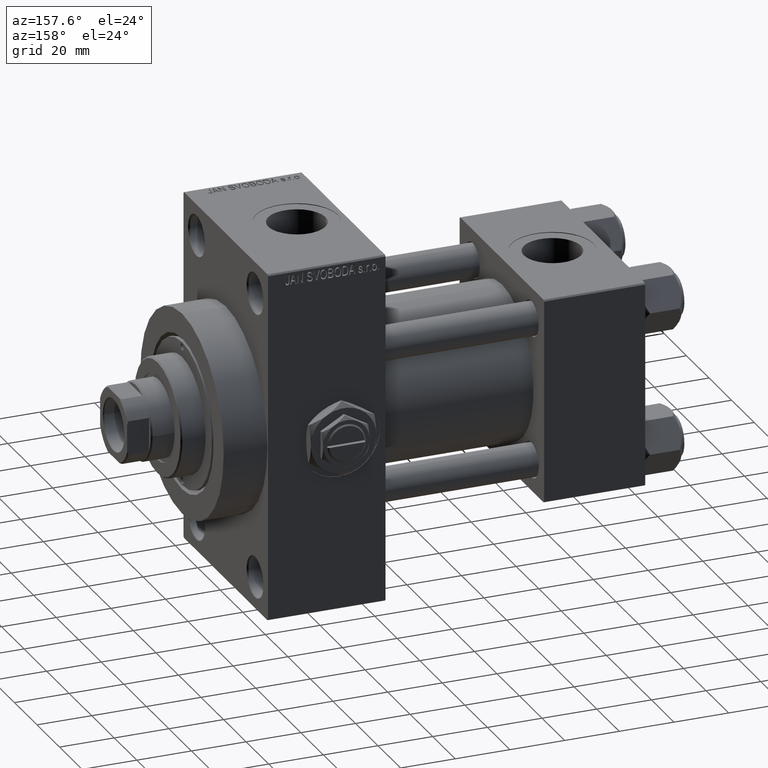
[diagram: clean part render]
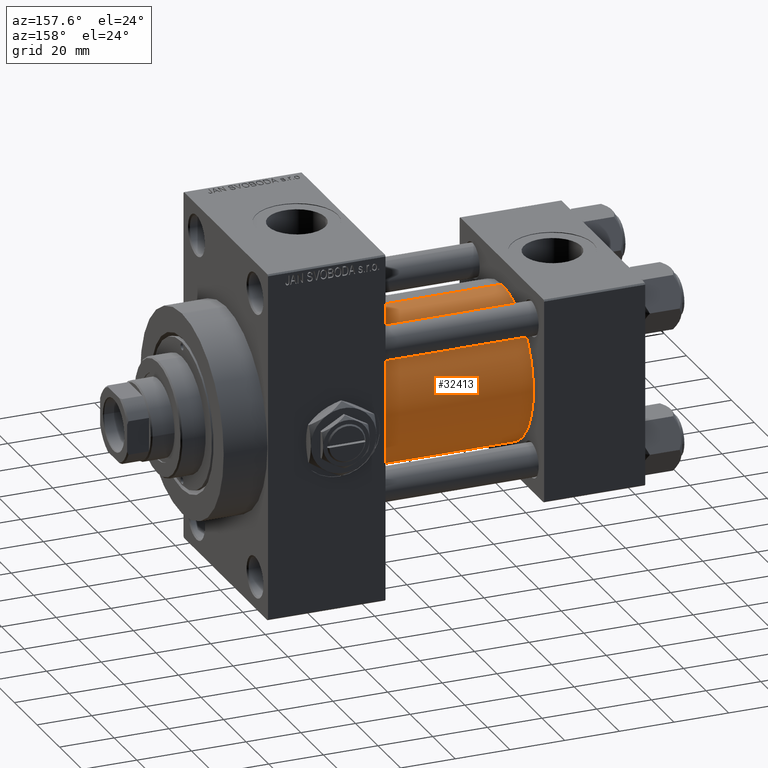
[diagram: same view with one face highlighted and labeled with its STEP entity id]
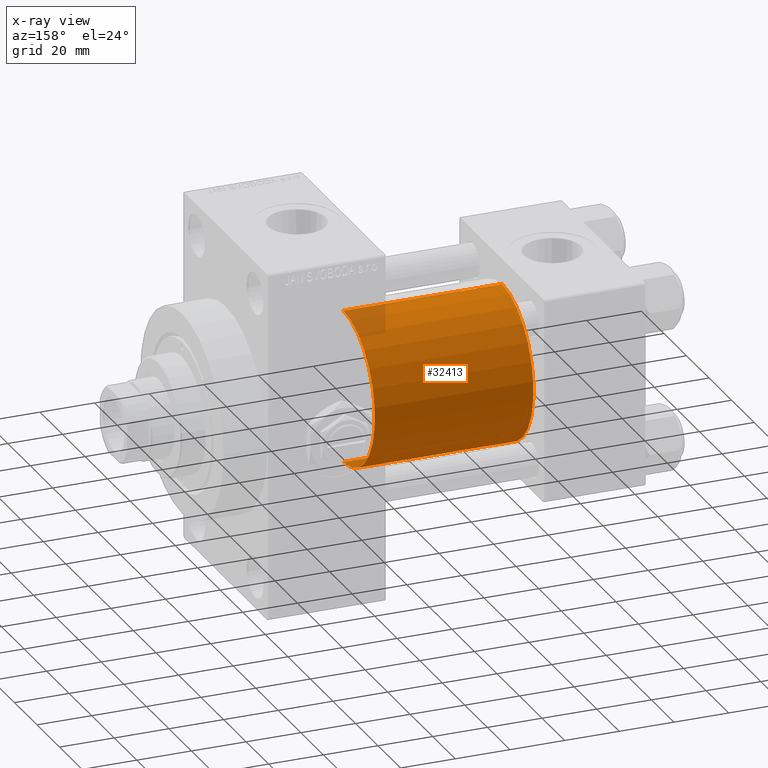
[diagram: x-ray of the same camera — body ghosted, the highlighted face saturated]
A machine part, auxiliary view. The second image highlights one B-rep face of the part: STEP entity #32413.
The next image is the same camera in x-ray: the body ghosted, the highlighted face saturated — about 4% of this face is hidden behind the body in this view.
In plain terms, the highlighted cylindrical surface (partial cylindrical patch) has radius 28 mm, axis along (-1, -0, -0).
Its self-contained STEP definition (entity closure, byte-faithful):
#1571 = DIRECTION ( 'NONE',  ( 0.000000000000000000, 0.000000000000000000, 1.000000000000000000 ) ) ;
#3276 = FACE_OUTER_BOUND ( 'NONE', #45222, .T. ) ;
#9794 = DIRECTION ( 'NONE',  ( 1.000000000000000000, 0.000000000000000000, 0.000000000000000000 ) ) ;
#11834 = CIRCLE ( 'NONE', #14207, 28.00000000000000000 ) ;
#13743 = DIRECTION ( 'NONE',  ( -1.000000000000000000, -0.000000000000000000, -0.000000000000000000 ) ) ;
#14207 = AXIS2_PLACEMENT_3D ( 'NONE', #38592, #46810, #1571 ) ;
#15566 = CARTESIAN_POINT ( 'NONE',  ( 95.00000000000000000, 8.269258236473776482E-16, -28.00000000000000000 ) ) ;
#16124 = VERTEX_POINT ( 'NONE', #15566 ) ;
#17949 = DIRECTION ( 'NONE',  ( 0.000000000000000000, 0.000000000000000000, 1.000000000000000000 ) ) ;
#18032 = CARTESIAN_POINT ( 'NONE',  ( 37.00000000000000000, 8.269258236473776482E-16, -28.00000000000000000 ) ) ;
#18061 = VECTOR ( 'NONE', #31186, 1000.000000000000000 ) ;
#20592 = ORIENTED_EDGE ( 'NONE', *, *, #33624, .T. ) ;
#21468 = CARTESIAN_POINT ( 'NONE',  ( 95.00000000000000000, -2.602085213965210642E-15, 0.000000000000000000 ) ) ;
#26824 = VECTOR ( 'NONE', #13743, 1000.000000000000000 ) ;
#28377 = LINE ( 'NONE', #32357, #26824 ) ;
#29268 = AXIS2_PLACEMENT_3D ( 'NONE', #21468, #9794, #48287 ) ;
#30277 = ORIENTED_EDGE ( 'NONE', *, *, #32322, .F. ) ;
#30324 = EDGE_CURVE ( 'NONE', #16124, #38024, #38127, .T. ) ;
#31186 = DIRECTION ( 'NONE',  ( -1.000000000000000000, -0.000000000000000000, -0.000000000000000000 ) ) ;
#32322 = EDGE_CURVE ( 'NONE', #34385, #36252, #28377, .T. ) ;
#32357 = CARTESIAN_POINT ( 'NONE',  ( 95.00000000000000000, -2.602085213965210642E-15, 28.00000000000000000 ) ) ;
#32413 = ADVANCED_FACE ( 'NONE', ( #3276 ), #33825, .T. ) ;
#32681 = ORIENTED_EDGE ( 'NONE', *, *, #30324, .T. ) ;
#33624 = EDGE_CURVE ( 'NONE', #38024, #36252, #11834, .T. ) ;
#33695 = EDGE_CURVE ( 'NONE', #16124, #34385, #34789, .T. ) ;
#33825 = CYLINDRICAL_SURFACE ( 'NONE', #49021, 28.00000000000000000 ) ;
#33923 = CARTESIAN_POINT ( 'NONE',  ( 95.00000000000000000, -2.602085213965210642E-15, 28.00000000000000000 ) ) ;
#34385 = VERTEX_POINT ( 'NONE', #33923 ) ;
#34789 = CIRCLE ( 'NONE', #29268, 28.00000000000000000 ) ;
#36252 = VERTEX_POINT ( 'NONE', #44537 ) ;
#36775 = ORIENTED_EDGE ( 'NONE', *, *, #33695, .F. ) ;
#38024 = VERTEX_POINT ( 'NONE', #18032 ) ;
#38127 = LINE ( 'NONE', #42103, #18061 ) ;
#38592 = CARTESIAN_POINT ( 'NONE',  ( 37.00000000000000000, -2.602085213965210642E-15, 0.000000000000000000 ) ) ;
#40540 = CARTESIAN_POINT ( 'NONE',  ( 95.00000000000000000, -2.602085213965210642E-15, 0.000000000000000000 ) ) ;
#42103 = CARTESIAN_POINT ( 'NONE',  ( 95.00000000000000000, 8.269258236473776482E-16, -28.00000000000000000 ) ) ;
#44537 = CARTESIAN_POINT ( 'NONE',  ( 37.00000000000000000, -2.602085213965210642E-15, 28.00000000000000000 ) ) ;
#44769 = DIRECTION ( 'NONE',  ( -1.000000000000000000, -0.000000000000000000, -0.000000000000000000 ) ) ;
#45222 = EDGE_LOOP ( 'NONE', ( #36775, #32681, #20592, #30277 ) ) ;
#46810 = DIRECTION ( 'NONE',  ( 1.000000000000000000, -0.000000000000000000, 0.000000000000000000 ) ) ;
#48287 = DIRECTION ( 'NONE',  ( 0.000000000000000000, 0.000000000000000000, -1.000000000000000000 ) ) ;
#49021 = AXIS2_PLACEMENT_3D ( 'NONE', #40540, #44769, #17949 ) ;